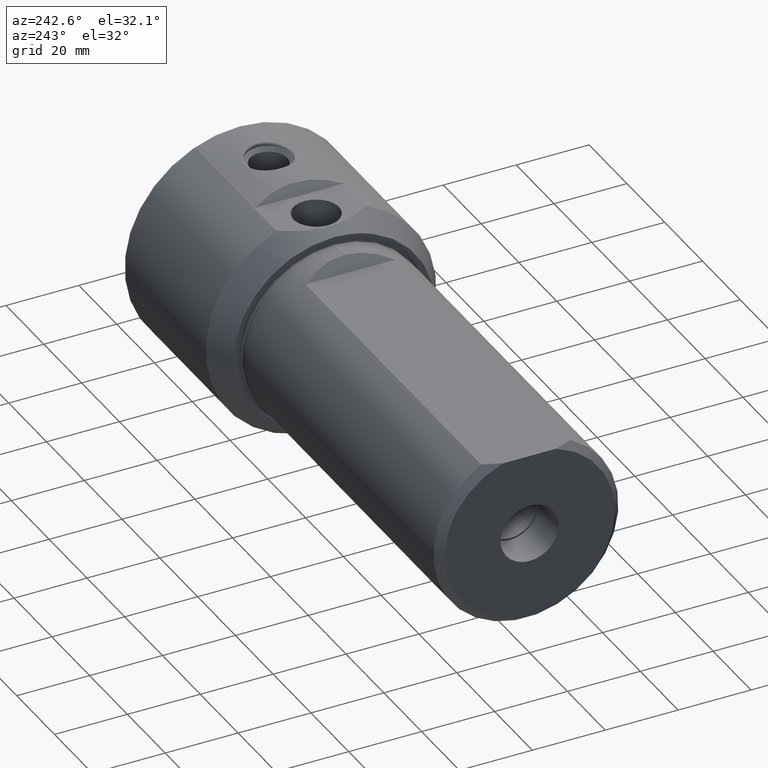
[diagram: clean part render]
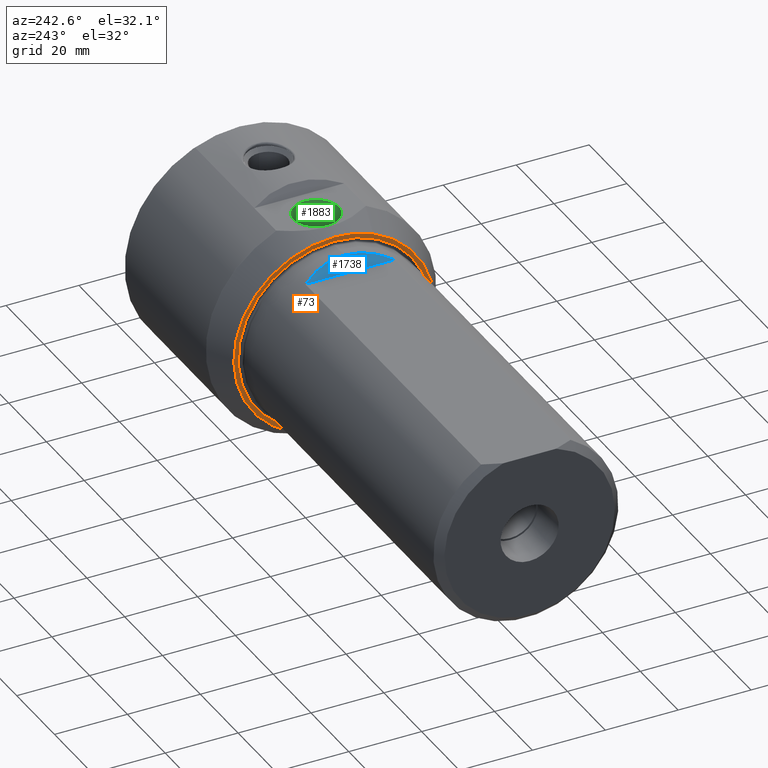
[diagram: same view with three faces highlighted in distinct colors, each labeled with its STEP entity id]
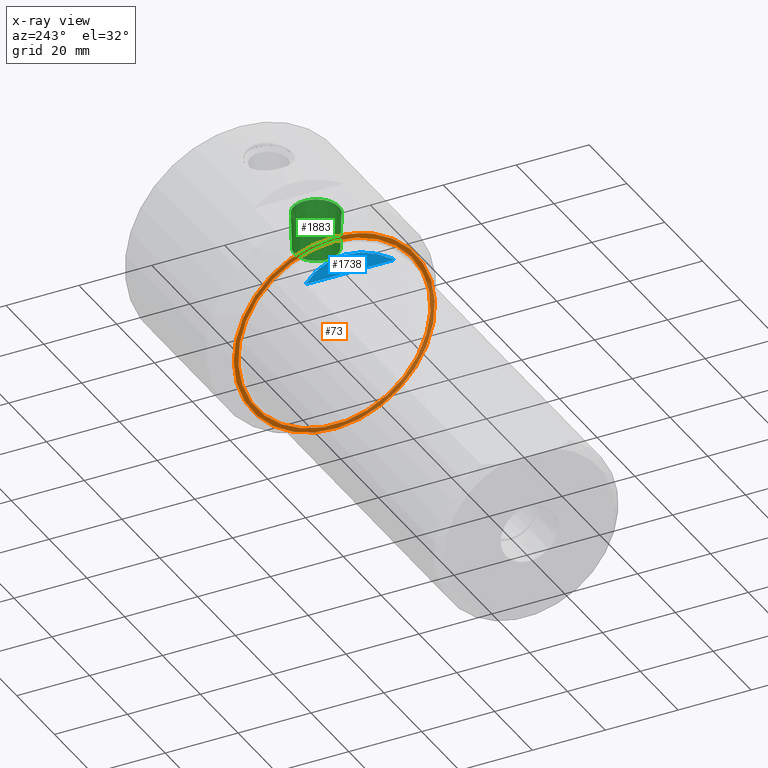
[diagram: x-ray of the same camera — body ghosted, the three highlighted faces saturated]
A machine part, auxiliary view with three faces highlighted in distinct colors.
The next image is the same camera in x-ray (body ghosted, the three faces saturated) — at least one of them is partly hidden behind the body in this view.
Their STEP definitions:

[orange] entity #73 — the highlighted planar face has unit normal (1, 0, 0).
#33 = CARTESIAN_POINT ( 'NONE',  ( 103.3999999999999915, 26.39407116054870883, 0.0000000000000000000 ) ) ;
#73 = ADVANCED_FACE ( 'NONE', ( #1328, #1701 ), #1133, .F. ) ;
#266 = EDGE_LOOP ( 'NONE', ( #1955 ) ) ;
#406 = VERTEX_POINT ( 'NONE', #1237 ) ;
#516 = DIRECTION ( 'NONE',  ( 0.0000000000000000000, 0.0000000000000000000, 1.000000000000000000 ) ) ;
#575 = AXIS2_PLACEMENT_3D ( 'NONE', #2325, #869, #516 ) ;
#666 = CARTESIAN_POINT ( 'NONE',  ( 103.3999999999999915, 0.0000000000000000000, 26.39407116054870883 ) ) ;
#823 = DIRECTION ( 'NONE',  ( 0.0000000000000000000, 0.0000000000000000000, 1.000000000000000000 ) ) ;
#838 = EDGE_CURVE ( 'NONE', #1727, #1727, #1359, .T. ) ;
#869 = DIRECTION ( 'NONE',  ( -1.000000000000000000, -0.0000000000000000000, -0.0000000000000000000 ) ) ;
#998 = CARTESIAN_POINT ( 'NONE',  ( 103.3999999999999915, 0.0000000000000000000, 0.0000000000000000000 ) ) ;
#1050 = CIRCLE ( 'NONE', #2290, 27.59354811567260413 ) ;
#1120 = EDGE_LOOP ( 'NONE', ( #1595 ) ) ;
#1133 = PLANE ( 'NONE',  #2073 ) ;
#1189 = EDGE_CURVE ( 'NONE', #406, #406, #1050, .T. ) ;
#1237 = CARTESIAN_POINT ( 'NONE',  ( 103.3999999999999915, 0.0000000000000000000, 27.59354811567260413 ) ) ;
#1328 = FACE_BOUND ( 'NONE', #266, .T. ) ;
#1359 = CIRCLE ( 'NONE', #575, 26.39407116054870883 ) ;
#1595 = ORIENTED_EDGE ( 'NONE', *, *, #1189, .T. ) ;
#1659 = DIRECTION ( 'NONE',  ( 1.000000000000000000, 0.0000000000000000000, 0.0000000000000000000 ) ) ;
#1701 = FACE_OUTER_BOUND ( 'NONE', #1120, .T. ) ;
#1727 = VERTEX_POINT ( 'NONE', #666 ) ;
#1923 = DIRECTION ( 'NONE',  ( -1.000000000000000000, -0.0000000000000000000, -0.0000000000000000000 ) ) ;
#1955 = ORIENTED_EDGE ( 'NONE', *, *, #838, .F. ) ;
#2034 = DIRECTION ( 'NONE',  ( 0.0000000000000000000, 0.0000000000000000000, -1.000000000000000000 ) ) ;
#2073 = AXIS2_PLACEMENT_3D ( 'NONE', #33, #1659, #2034 ) ;
#2290 = AXIS2_PLACEMENT_3D ( 'NONE', #998, #1923, #823 ) ;
#2325 = CARTESIAN_POINT ( 'NONE',  ( 103.3999999999999915, 0.0000000000000000000, 0.0000000000000000000 ) ) ;

[blue] entity #1738 — the highlighted planar face has unit normal (0.7071, 0, -0.7071).
#64 = CARTESIAN_POINT ( 'NONE',  ( 95.00000000000000000, -31.63500000000000512, 22.23000000000000043 ) ) ;
#116 = DIRECTION ( 'NONE',  ( 0.7071067811865429098, 0.0000000000000000000, -0.7071067811865522357 ) ) ;
#175 = VERTEX_POINT ( 'NONE', #607 ) ;
#186 = EDGE_CURVE ( 'NONE', #175, #494, #707, .T. ) ;
#275 = ORIENTED_EDGE ( 'NONE', *, *, #1703, .F. ) ;
#283 = CARTESIAN_POINT ( 'NONE',  ( 95.00000000000000000, 12.27734193545166441, 22.23000000000000043 ) ) ;
#347 = AXIS2_PLACEMENT_3D ( 'NONE', #1749, #116, #1384 ) ;
#494 = VERTEX_POINT ( 'NONE', #283 ) ;
#537 = VECTOR ( 'NONE', #1168, 1000.000000000000000 ) ;
#607 = CARTESIAN_POINT ( 'NONE',  ( 95.00000000000000000, -12.27734193545166441, 22.23000000000000043 ) ) ;
#624 = ORIENTED_EDGE ( 'NONE', *, *, #186, .F. ) ;
#707 = LINE ( 'NONE', #64, #537 ) ;
#1137 = EDGE_LOOP ( 'NONE', ( #624, #275 ) ) ;
#1168 = DIRECTION ( 'NONE',  ( -0.0000000000000000000, 1.000000000000000000, -0.0000000000000000000 ) ) ;
#1186 = PLANE ( 'NONE',  #347 ) ;
#1380 = CARTESIAN_POINT ( 'NONE',  ( 95.00000000000000000, 12.27734193545166441, 22.23000000000000043 ) ) ;
#1384 = DIRECTION ( 'NONE',  ( -0.7071067811865522357, 0.0000000000000000000, -0.7071067811865429098 ) ) ;
#1496 = FACE_OUTER_BOUND ( 'NONE', #1137, .T. ) ;
#1557 = CARTESIAN_POINT ( 'NONE',  ( 99.31560017178448163, 4.463289649284877925, 26.54560017178441811 ) ) ;
#1665 =( BOUNDED_CURVE ( )  B_SPLINE_CURVE ( 3, ( #1380, #1557, #2260, #1932 ),
 .UNSPECIFIED., .F., .F. ) 
 B_SPLINE_CURVE_WITH_KNOTS ( ( 4, 4 ),
 ( 2.636995217990977913, 3.646190089188608319 ),
 .UNSPECIFIED. ) 
 CURVE ( )  GEOMETRIC_REPRESENTATION_ITEM ( )  RATIONAL_B_SPLINE_CURVE ( ( 1.000000000000000000, 0.9169127781059263071, 0.9169127781059263071, 1.000000000000000000 ) ) 
 REPRESENTATION_ITEM ( '' )  );
#1703 = EDGE_CURVE ( 'NONE', #494, #175, #1665, .T. ) ;
#1738 = ADVANCED_FACE ( 'NONE', ( #1496 ), #1186, .F. ) ;
#1749 = CARTESIAN_POINT ( 'NONE',  ( 98.16500000000004889, -31.63500000000000512, 25.39499999999999957 ) ) ;
#1932 = CARTESIAN_POINT ( 'NONE',  ( 95.00000000000000000, -12.27734193545166441, 22.23000000000000043 ) ) ;
#2260 = CARTESIAN_POINT ( 'NONE',  ( 99.31560017178448163, -4.463289649284870819, 26.54560017178441811 ) ) ;

[green] entity #1883 — the highlighted conical surface has half-angle 1.715 deg.
#76 = CARTESIAN_POINT ( 'NONE',  ( 113.0000000000000000, 0.0000000000000000000, 29.13500000000000512 ) ) ;
#97 = DIRECTION ( 'NONE',  ( -0.0000000000000000000, -0.0000000000000000000, 1.000000000000000000 ) ) ;
#245 = CARTESIAN_POINT ( 'NONE',  ( 113.0000000000000000, 0.0000000000000000000, 29.13500000000000512 ) ) ;
#258 = AXIS2_PLACEMENT_3D ( 'NONE', #868, #1571, #674 ) ;
#315 = CARTESIAN_POINT ( 'NONE',  ( 119.2437010000000015, 0.0000000000000000000, 29.13500000000000512 ) ) ;
#360 = ORIENTED_EDGE ( 'NONE', *, *, #2298, .T. ) ;
#422 = DIRECTION ( 'NONE',  ( -0.0000000000000000000, -0.0000000000000000000, 1.000000000000000000 ) ) ;
#674 = DIRECTION ( 'NONE',  ( 1.000000000000000000, 0.0000000000000000000, 0.0000000000000000000 ) ) ;
#840 = CARTESIAN_POINT ( 'NONE',  ( 118.9436797991095318, 0.0000000000000000000, 19.11470000000000624 ) ) ;
#868 = CARTESIAN_POINT ( 'NONE',  ( 113.0000000000000000, 0.0000000000000000000, 19.11470000000000624 ) ) ;
#901 = CIRCLE ( 'NONE', #1744, 6.243701000000004164 ) ;
#1315 = EDGE_CURVE ( 'NONE', #2072, #2072, #1732, .T. ) ;
#1440 = FACE_OUTER_BOUND ( 'NONE', #2306, .T. ) ;
#1571 = DIRECTION ( 'NONE',  ( -0.0000000000000000000, -0.0000000000000000000, 1.000000000000000000 ) ) ;
#1675 = AXIS2_PLACEMENT_3D ( 'NONE', #245, #422, #1866 ) ;
#1720 = DIRECTION ( 'NONE',  ( 1.000000000000000000, 0.0000000000000000000, 0.0000000000000000000 ) ) ;
#1732 = CIRCLE ( 'NONE', #258, 5.943679799109522044 ) ;
#1744 = AXIS2_PLACEMENT_3D ( 'NONE', #76, #97, #1720 ) ;
#1800 = ORIENTED_EDGE ( 'NONE', *, *, #1315, .F. ) ;
#1866 = DIRECTION ( 'NONE',  ( 1.000000000000000000, 0.0000000000000000000, 0.0000000000000000000 ) ) ;
#1883 = ADVANCED_FACE ( 'NONE', ( #1905, #1440 ), #2271, .F. ) ;
#1905 = FACE_BOUND ( 'NONE', #2218, .T. ) ;
#1989 = VERTEX_POINT ( 'NONE', #315 ) ;
#2072 = VERTEX_POINT ( 'NONE', #840 ) ;
#2218 = EDGE_LOOP ( 'NONE', ( #1800 ) ) ;
#2271 = CONICAL_SURFACE ( 'NONE', #1675, 6.243701000000004164, 0.02993239667170363369 ) ;
#2298 = EDGE_CURVE ( 'NONE', #1989, #1989, #901, .T. ) ;
#2306 = EDGE_LOOP ( 'NONE', ( #360 ) ) ;